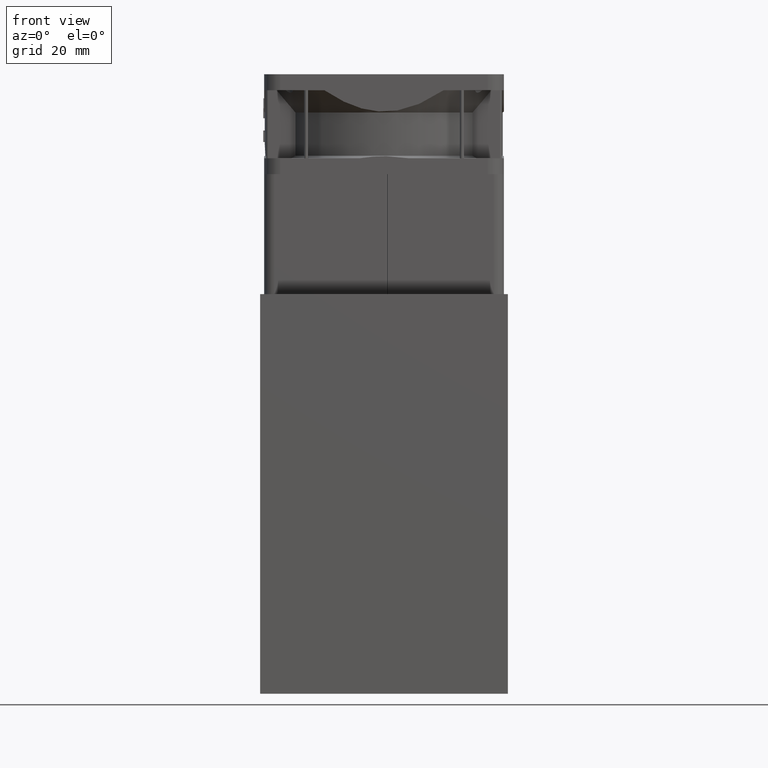
[diagram: clean part render]
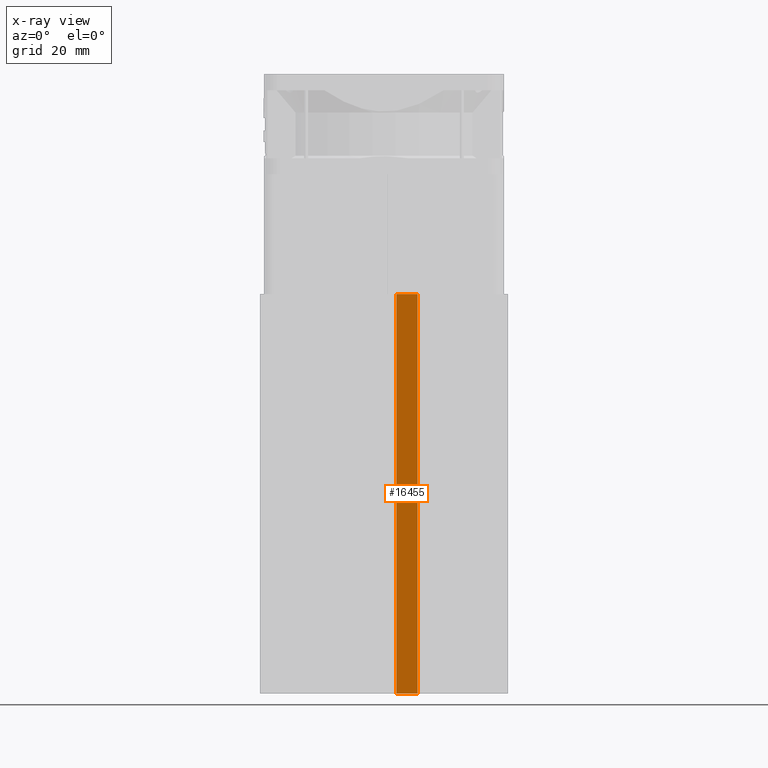
[diagram: x-ray — body ghosted, one internal face saturated and labeled with its STEP entity id]
A machine part, front view, then the same camera in x-ray: the body is ghosted and one INTERNAL B-rep face — a face not visible from any outside direction — is saturated and labeled: STEP entity #16455.
In plain terms, the highlighted planar face has unit normal (0, -1, 0).
Its self-contained STEP definition (entity closure, byte-faithful):
#856 = EDGE_LOOP ( 'NONE', ( #22214, #31085, #12345, #18739 ) ) ;
#1168 = VECTOR ( 'NONE', #14647, 1000.000000000000000 ) ;
#2344 = CARTESIAN_POINT ( 'NONE',  ( 8.189661399912505857, -28.20000000462064094, 0.000000000000000000 ) ) ;
#4460 = DIRECTION ( 'NONE',  ( -0.000000000000000000, -0.000000000000000000, -1.000000000000000000 ) ) ;
#4987 = DIRECTION ( 'NONE',  ( 0.000000000000000000, -1.000000000000000000, 0.000000000000000000 ) ) ;
#5067 = EDGE_CURVE ( 'NONE', #16820, #26183, #28020, .T. ) ;
#8029 = LINE ( 'NONE', #29960, #16815 ) ;
#8237 = CARTESIAN_POINT ( 'NONE',  ( 2.889661358441477201, -28.20000002179857646, 0.000000000000000000 ) ) ;
#9657 = CARTESIAN_POINT ( 'NONE',  ( 0.000000000000000000, -28.20000000462064094, 100.0000000000000000 ) ) ;
#9721 = CARTESIAN_POINT ( 'NONE',  ( 8.189661399912505857, -28.20000000462064094, 100.0000000000000000 ) ) ;
#9963 = VECTOR ( 'NONE', #4460, 1000.000000000000000 ) ;
#12013 = CARTESIAN_POINT ( 'NONE',  ( 2.889661358441477201, -28.20000002179857646, 100.0000000000000000 ) ) ;
#12345 = ORIENTED_EDGE ( 'NONE', *, *, #16556, .F. ) ;
#13157 = DIRECTION ( 'NONE',  ( -0.000000000000000000, -0.000000000000000000, -1.000000000000000000 ) ) ;
#13319 = CARTESIAN_POINT ( 'NONE',  ( 0.000000000000000000, -28.20000000462064094, 0.000000000000000000 ) ) ;
#13338 = VERTEX_POINT ( 'NONE', #9721 ) ;
#13424 = VECTOR ( 'NONE', #23172, 1000.000000000000000 ) ;
#14647 = DIRECTION ( 'NONE',  ( -1.000000000000000000, 0.000000000000000000, 0.000000000000000000 ) ) ;
#15908 = LINE ( 'NONE', #12013, #9963 ) ;
#16121 = AXIS2_PLACEMENT_3D ( 'NONE', #17218, #4987, #16583 ) ;
#16455 = ADVANCED_FACE ( 'NONE', ( #29005 ), #19001, .F. ) ;
#16556 = EDGE_CURVE ( 'NONE', #13338, #24090, #24001, .T. ) ;
#16583 = DIRECTION ( 'NONE',  ( 0.000000000000000000, -0.000000000000000000, -1.000000000000000000 ) ) ;
#16781 = EDGE_CURVE ( 'NONE', #24090, #26183, #15908, .T. ) ;
#16815 = VECTOR ( 'NONE', #13157, 1000.000000000000000 ) ;
#16820 = VERTEX_POINT ( 'NONE', #2344 ) ;
#17218 = CARTESIAN_POINT ( 'NONE',  ( 0.000000000000000000, -28.20000000462064094, 100.0000000000000000 ) ) ;
#18739 = ORIENTED_EDGE ( 'NONE', *, *, #22844, .T. ) ;
#19001 = PLANE ( 'NONE',  #16121 ) ;
#22214 = ORIENTED_EDGE ( 'NONE', *, *, #5067, .T. ) ;
#22844 = EDGE_CURVE ( 'NONE', #13338, #16820, #8029, .T. ) ;
#23172 = DIRECTION ( 'NONE',  ( -1.000000000000000000, 0.000000000000000000, 0.000000000000000000 ) ) ;
#24001 = LINE ( 'NONE', #9657, #1168 ) ;
#24090 = VERTEX_POINT ( 'NONE', #27715 ) ;
#26183 = VERTEX_POINT ( 'NONE', #8237 ) ;
#27715 = CARTESIAN_POINT ( 'NONE',  ( 2.889661358441477201, -28.20000002179857646, 100.0000000000000000 ) ) ;
#28020 = LINE ( 'NONE', #13319, #13424 ) ;
#29005 = FACE_OUTER_BOUND ( 'NONE', #856, .T. ) ;
#29960 = CARTESIAN_POINT ( 'NONE',  ( 8.189661399912505857, -28.20000000462064094, 100.0000000000000000 ) ) ;
#31085 = ORIENTED_EDGE ( 'NONE', *, *, #16781, .F. ) ;